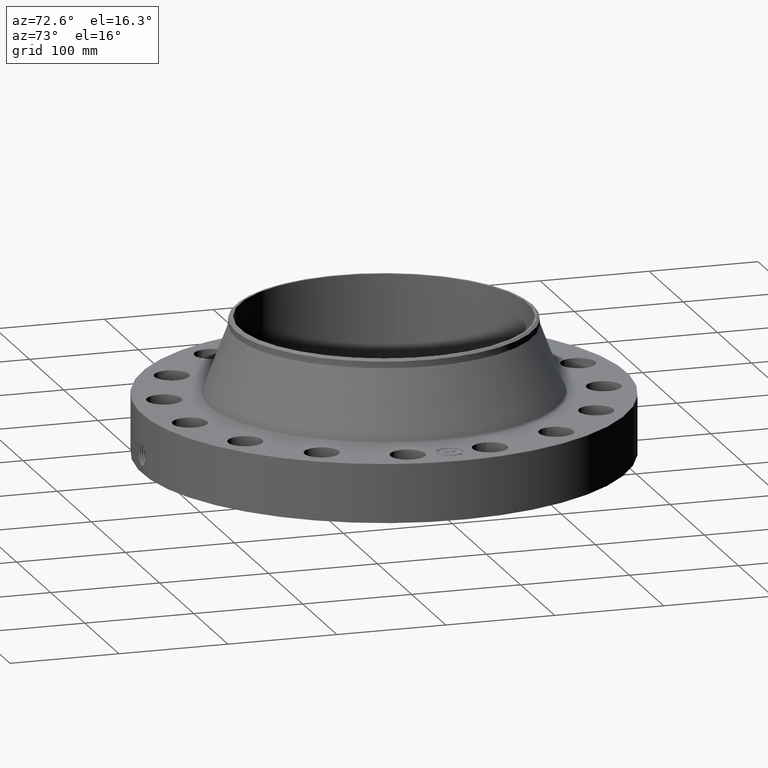
[diagram: clean part render]
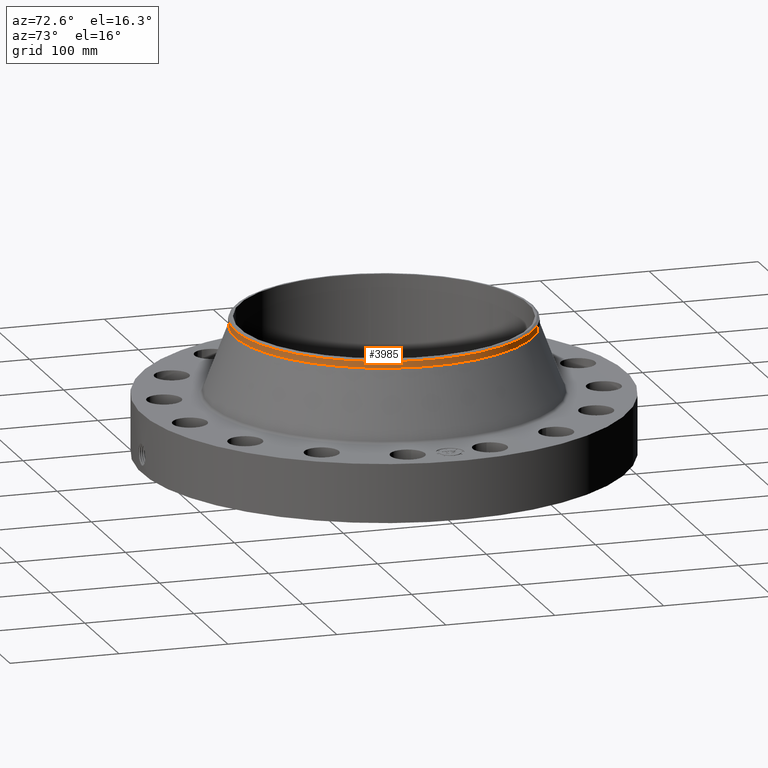
[diagram: same view with one face highlighted and labeled with its STEP entity id]
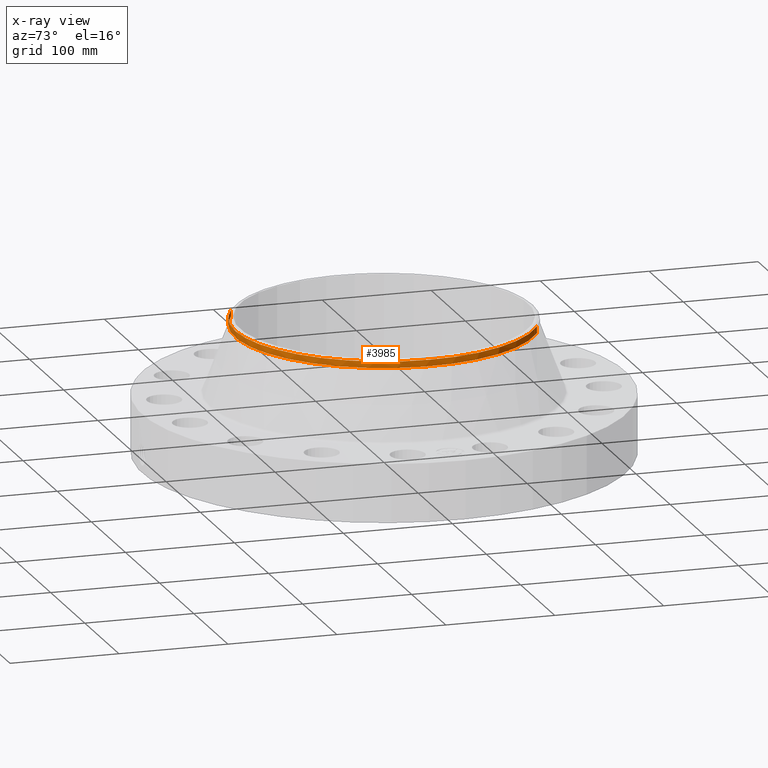
[diagram: x-ray of the same camera — body ghosted, the highlighted face saturated]
A machine part, auxiliary view. The second image highlights one B-rep face of the part: STEP entity #3985.
The next image is the same camera in x-ray: the body ghosted, the highlighted face saturated — about 0% of this face is hidden behind the body in this view.
In plain terms, the highlighted cylindrical surface (partial cylindrical patch) has radius 136.525 mm, axis along (0, 0, -1).
Its self-contained STEP definition (entity closure, byte-faithful):
#3172=AXIS2_PLACEMENT_3D('Circle Axis2P3D',#3170,#3171,$) ;
#3627=AXIS2_PLACEMENT_3D('Circle Axis2P3D',#3625,#3626,$) ;
#3640=AXIS2_PLACEMENT_3D('Circle Axis2P3D',#3638,#3639,$) ;
#3966=AXIS2_PLACEMENT_3D('Cylinder Axis2P3D',#3963,#3964,#3965) ;
#3167=CARTESIAN_POINT('Vertex',(2.57691227001,4.71700627018,4.82759002243)) ;
#3170=CARTESIAN_POINT('Axis2P3D Location',(0.,0.,4.82759002243)) ;
#3174=CARTESIAN_POINT('Vertex',(-2.57691227001,-4.71700627018,4.82759002243)) ;
#3608=CARTESIAN_POINT('Vertex',(2.57691227001,-4.71700627018,5.06381049488)) ;
#3622=CARTESIAN_POINT('Vertex',(-2.57691227001,-4.71700627018,5.06381049488)) ;
#3625=CARTESIAN_POINT('Axis2P3D Location',(0.,0.,5.06381049488)) ;
#3638=CARTESIAN_POINT('Axis2P3D Location',(0.,0.,5.06381049488)) ;
#3642=CARTESIAN_POINT('Vertex',(2.57691227001,4.71700627018,5.06381049488)) ;
#3963=CARTESIAN_POINT('Axis2P3D Location',(0.,0.,2.69000000001)) ;
#3968=CARTESIAN_POINT('Line Origine',(-2.57691227001,-4.71700627018,4.94570025866)) ;
#3973=CARTESIAN_POINT('Line Origine',(2.57691227001,4.71700627018,4.94570025866)) ;
#3171=DIRECTION('Axis2P3D Direction',(0.,0.,-0.0393700787402)) ;
#3626=DIRECTION('Axis2P3D Direction',(0.,0.,-0.0393700787402)) ;
#3639=DIRECTION('Axis2P3D Direction',(0.,0.,-0.0393700787402)) ;
#3964=DIRECTION('Axis2P3D Direction',(0.,0.,-0.0393700787402)) ;
#3965=DIRECTION('Axis2P3D XDirection',(-0.0188750212049,-0.0345504945626,0.)) ;
#3969=DIRECTION('Vector Direction',(0.,0.,-0.0393700787402)) ;
#3974=DIRECTION('Vector Direction',(0.,0.,-0.0393700787402)) ;
#3970=VECTOR('Line Direction',#3969,0.0393700787402) ;
#3975=VECTOR('Line Direction',#3974,0.0393700787402) ;
#3979=ORIENTED_EDGE('',*,*,#3972,.F.) ;
#3980=ORIENTED_EDGE('',*,*,#3176,.F.) ;
#3981=ORIENTED_EDGE('',*,*,#3977,.T.) ;
#3982=ORIENTED_EDGE('',*,*,#3644,.F.) ;
#3983=ORIENTED_EDGE('',*,*,#3629,.T.) ;
#3985=ADVANCED_FACE('PartBody',(#3984),#3967,.T.) ;
#3173=CIRCLE('generated circle',#3172,5.37500000002) ;
#3628=CIRCLE('generated circle',#3627,5.37500000002) ;
#3641=CIRCLE('generated circle',#3640,5.37500000002) ;
#3967=CYLINDRICAL_SURFACE('generated cylinder',#3966,5.37500000002) ;
#3176=EDGE_CURVE('',#3168,#3175,#3173,.T.) ;
#3629=EDGE_CURVE('',#3609,#3623,#3628,.T.) ;
#3644=EDGE_CURVE('',#3609,#3643,#3641,.F.) ;
#3972=EDGE_CURVE('',#3175,#3623,#3971,.F.) ;
#3977=EDGE_CURVE('',#3168,#3643,#3976,.F.) ;
#3978=EDGE_LOOP('',(#3979,#3980,#3981,#3982,#3983)) ;
#3984=FACE_OUTER_BOUND('',#3978,.T.) ;
#3971=LINE('Line',#3968,#3970) ;
#3976=LINE('Line',#3973,#3975) ;
#3168=VERTEX_POINT('',#3167) ;
#3175=VERTEX_POINT('',#3174) ;
#3609=VERTEX_POINT('',#3608) ;
#3623=VERTEX_POINT('',#3622) ;
#3643=VERTEX_POINT('',#3642) ;